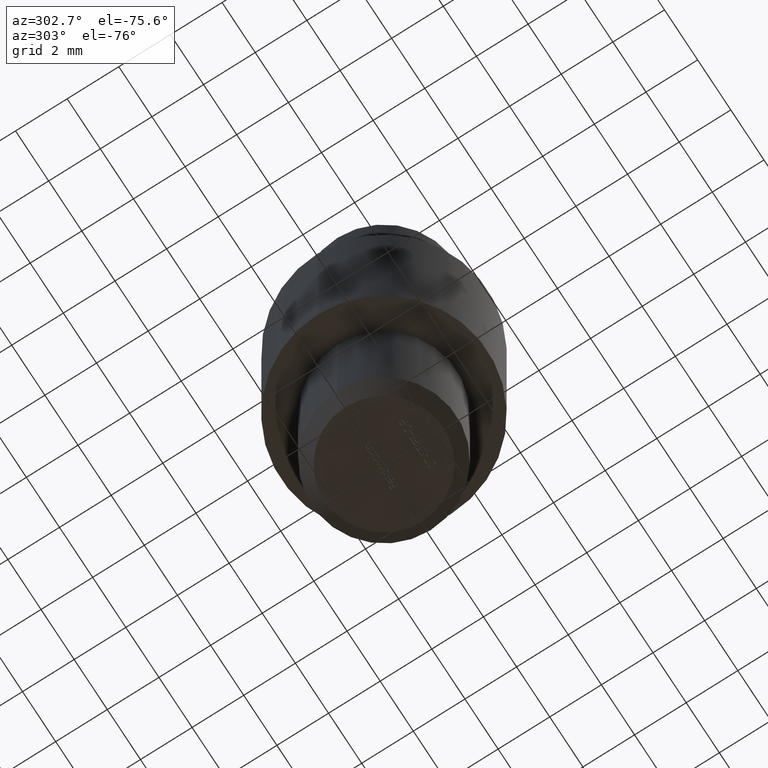
[diagram: clean part render]
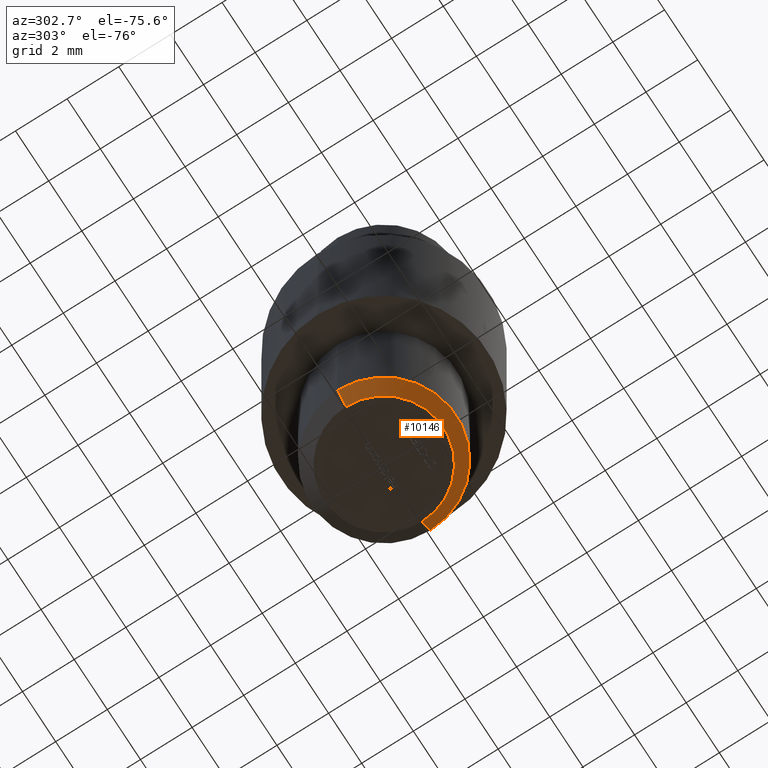
[diagram: same view with one face highlighted and labeled with its STEP entity id]
A machine part, auxiliary view. The second image highlights one B-rep face of the part: STEP entity #10146.
In plain terms, the highlighted conical surface has half-angle 45 deg.
Its self-contained STEP definition (entity closure, byte-faithful):
#2 = VERTEX_POINT ( 'NONE', #4767 ) ;
#48 = VECTOR ( 'NONE', #7336, 1000.000000000000000 ) ;
#51 = VECTOR ( 'NONE', #3961, 1000.000000000000000 ) ;
#792 = CARTESIAN_POINT ( 'NONE',  ( -2.299999999999977200, 3.122849337825736600E-016, 0.0000000000000000000 ) ) ;
#900 = EDGE_CURVE ( 'NONE', #2094, #2, #3085, .T. ) ;
#906 = CARTESIAN_POINT ( 'NONE',  ( 2.299999999999977200, 0.0000000000000000000, 0.0000000000000000000 ) ) ;
#1224 = CARTESIAN_POINT ( 'NONE',  ( -2.799999999999999800, 3.429011037612588800E-016, 0.5000000000000213200 ) ) ;
#1404 = DIRECTION ( 'NONE',  ( 1.000000000000000000, 0.0000000000000000000, 0.0000000000000000000 ) ) ;
#1808 = EDGE_CURVE ( 'NONE', #8359, #3240, #6287, .T. ) ;
#1922 = AXIS2_PLACEMENT_3D ( 'NONE', #4961, #11242, #1404 ) ;
#2094 = VERTEX_POINT ( 'NONE', #2441 ) ;
#2441 = CARTESIAN_POINT ( 'NONE',  ( -2.799999999999999800, 0.0000000000000000000, 0.5000000000000213200 ) ) ;
#2972 = DIRECTION ( 'NONE',  ( -0.0000000000000000000, -0.0000000000000000000, -1.000000000000000000 ) ) ;
#3085 = CIRCLE ( 'NONE', #9681, 2.799999999999999800 ) ;
#3240 = VERTEX_POINT ( 'NONE', #792 ) ;
#3521 = AXIS2_PLACEMENT_3D ( 'NONE', #8476, #2972, #4741 ) ;
#3610 = ORIENTED_EDGE ( 'NONE', *, *, #900, .F. ) ;
#3740 = ORIENTED_EDGE ( 'NONE', *, *, #10572, .F. ) ;
#3961 = DIRECTION ( 'NONE',  ( -0.7071067811865487900, 8.659560562354950100E-017, 0.7071067811865463500 ) ) ;
#4741 = DIRECTION ( 'NONE',  ( 1.000000000000000000, 0.0000000000000000000, 0.0000000000000000000 ) ) ;
#4767 = CARTESIAN_POINT ( 'NONE',  ( 2.799999999999999800, 3.429011037612588300E-016, 0.5000000000000213200 ) ) ;
#4809 = LINE ( 'NONE', #6013, #48 ) ;
#4961 = CARTESIAN_POINT ( 'NONE',  ( 0.0000000000000000000, 0.0000000000000000000, 0.5000000000000213200 ) ) ;
#5711 = CARTESIAN_POINT ( 'NONE',  ( 0.0000000000000000000, 0.0000000000000000000, 0.5000000000000213200 ) ) ;
#6013 = CARTESIAN_POINT ( 'NONE',  ( 2.799999999999999800, 0.0000000000000000000, 0.5000000000000213200 ) ) ;
#6287 = CIRCLE ( 'NONE', #3521, 2.299999999999977200 ) ;
#6633 = DIRECTION ( 'NONE',  ( -0.0000000000000000000, -0.0000000000000000000, 1.000000000000000000 ) ) ;
#6671 = ORIENTED_EDGE ( 'NONE', *, *, #6921, .T. ) ;
#6757 = DIRECTION ( 'NONE',  ( 1.000000000000000000, 0.0000000000000000000, 0.0000000000000000000 ) ) ;
#6817 = CONICAL_SURFACE ( 'NONE', #1922, 2.799999999999999800, 0.7853981633974500600 ) ;
#6921 = EDGE_CURVE ( 'NONE', #8359, #2, #4809, .T. ) ;
#7336 = DIRECTION ( 'NONE',  ( 0.7071067811865487900, 0.0000000000000000000, 0.7071067811865463500 ) ) ;
#8359 = VERTEX_POINT ( 'NONE', #906 ) ;
#8476 = CARTESIAN_POINT ( 'NONE',  ( 0.0000000000000000000, 0.0000000000000000000, 0.0000000000000000000 ) ) ;
#9253 = FACE_OUTER_BOUND ( 'NONE', #11028, .T. ) ;
#9303 = ORIENTED_EDGE ( 'NONE', *, *, #1808, .F. ) ;
#9681 = AXIS2_PLACEMENT_3D ( 'NONE', #5711, #6633, #6757 ) ;
#10146 = ADVANCED_FACE ( 'NONE', ( #9253 ), #6817, .T. ) ;
#10572 = EDGE_CURVE ( 'NONE', #3240, #2094, #11252, .T. ) ;
#11028 = EDGE_LOOP ( 'NONE', ( #3740, #9303, #6671, #3610 ) ) ;
#11242 = DIRECTION ( 'NONE',  ( -0.0000000000000000000, -0.0000000000000000000, 1.000000000000000000 ) ) ;
#11252 = LINE ( 'NONE', #1224, #51 ) ;